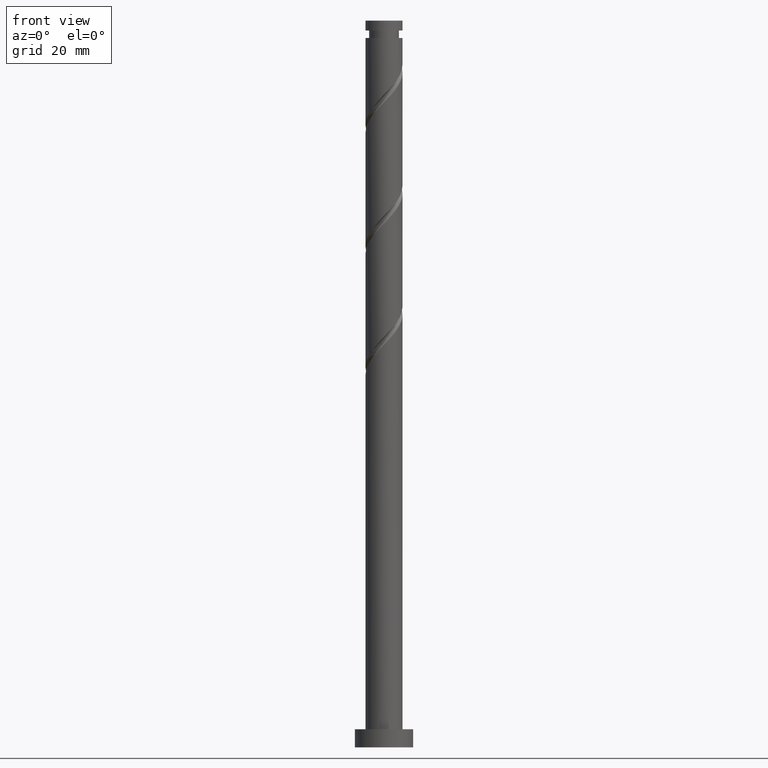
[diagram: clean part render]
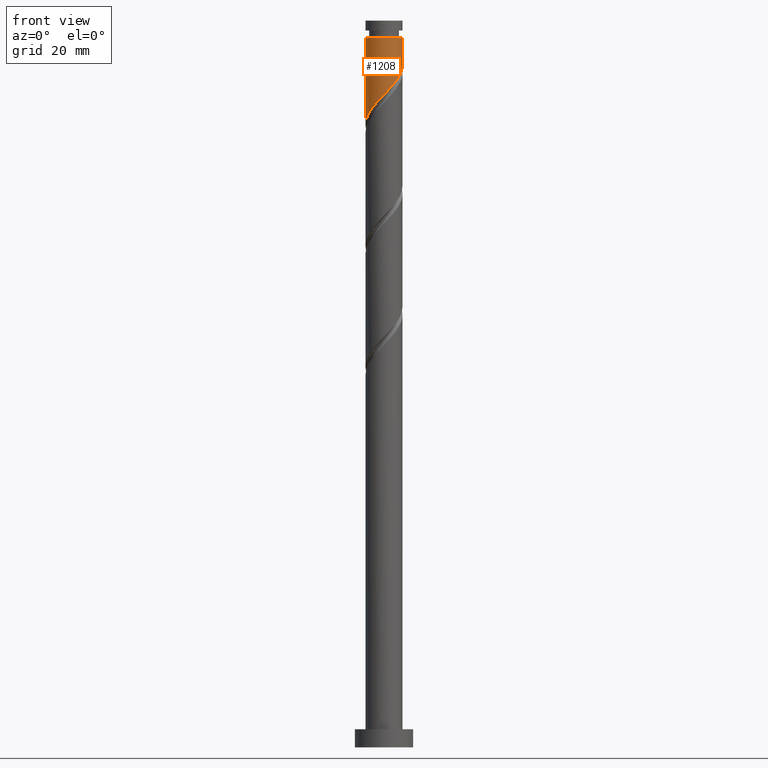
[diagram: same view with one face highlighted and labeled with its STEP entity id]
A machine part, front view. The second image highlights one B-rep face of the part: STEP entity #1208.
In plain terms, the highlighted cylindrical surface (edge-blend (fillet) strip) has radius 5.1 mm, axis along (-0, -0, -1).
Its self-contained STEP definition (entity closure, byte-faithful):
#22 = CARTESIAN_POINT ( 'NONE',  ( 4.864387567213564800, -1.672886368790561518, 186.1923034357766369 ) ) ;
#26 = VERTEX_POINT ( 'NONE', #105 ) ;
#54 = CARTESIAN_POINT ( 'NONE',  ( -3.880955876624109901, -3.376240022664852347, 175.0811923246654942 ) ) ;
#86 = CARTESIAN_POINT ( 'NONE',  ( -5.099999999999999645, 0.000000000000000000, 200.0000000000000000 ) ) ;
#105 = CARTESIAN_POINT ( 'NONE',  ( -5.099999999999988098, 0.000000000000000000, 195.2200812135544368 ) ) ;
#126 = DIRECTION ( 'NONE',  ( -0.000000000000000000, -0.000000000000000000, -1.000000000000000000 ) ) ;
#133 = DIRECTION ( 'NONE',  ( -0.000000000000000000, -0.000000000000000000, -1.000000000000000000 ) ) ;
#143 = EDGE_CURVE ( 'NONE', #640, #26, #605, .T. ) ;
#193 = CARTESIAN_POINT ( 'NONE',  ( 0.3132718438412520068, -5.090369412120920423, 179.9423034357766653 ) ) ;
#247 = DIRECTION ( 'NONE',  ( -1.000000000000000000, 0.000000000000000000, 0.000000000000000000 ) ) ;
#299 = CARTESIAN_POINT ( 'NONE',  ( 4.997999999999998444, -1.014887185848754259, 186.8867478802211224 ) ) ;
#312 = VERTEX_POINT ( 'NONE', #840 ) ;
#313 = CARTESIAN_POINT ( 'NONE',  ( -0.3568880029069506632, -5.131612432786431199, 179.2478589913321230 ) ) ;
#332 = CARTESIAN_POINT ( 'NONE',  ( 1.620081915079678803, -4.835838561039001782, 181.3311923246655795 ) ) ;
#416 = DIRECTION ( 'NONE',  ( -1.000000000000000000, 0.000000000000000000, 0.000000000000000000 ) ) ;
#424 = EDGE_LOOP ( 'NONE', ( #830, #788, #444, #861 ) ) ;
#444 = ORIENTED_EDGE ( 'NONE', *, *, #657, .T. ) ;
#445 = CARTESIAN_POINT ( 'NONE',  ( -2.874880293216528493, -4.265662727715638702, 176.4700812135544368 ) ) ;
#456 = CARTESIAN_POINT ( 'NONE',  ( -4.835838561039000005, -1.620081915079678803, 172.9978589913322367 ) ) ;
#457 = LINE ( 'NONE', #86, #1470 ) ;
#515 = VECTOR ( 'NONE', #126, 1000.000000000000000 ) ;
#543 = CARTESIAN_POINT ( 'NONE',  ( 0.000000000000000000, 0.000000000000000000, 195.2200812135544368 ) ) ;
#565 = CARTESIAN_POINT ( 'NONE',  ( 4.565025147464601751, -2.273883331003546004, 185.4978589913322082 ) ) ;
#605 = CIRCLE ( 'NONE', #1649, 5.099999999999988098 ) ;
#615 = DIRECTION ( 'NONE',  ( -0.000000000000000000, -0.000000000000000000, -1.000000000000000000 ) ) ;
#640 = VERTEX_POINT ( 'NONE', #1292 ) ;
#644 = LINE ( 'NONE', #1289, #515 ) ;
#657 = EDGE_CURVE ( 'NONE', #26, #781, #457, .T. ) ;
#700 = CARTESIAN_POINT ( 'NONE',  ( 5.099999999999996092, -0.5125692857822160553, 187.4168881662418755 ) ) ;
#719 = CARTESIAN_POINT ( 'NONE',  ( -4.251753303623349467, -2.816486081117378415, 174.3867478802211224 ) ) ;
#737 = CARTESIAN_POINT ( 'NONE',  ( -5.049126391455411422, -0.9834316905894557870, 172.3034145468877796 ) ) ;
#781 = VERTEX_POINT ( 'NONE', #1027 ) ;
#788 = ORIENTED_EDGE ( 'NONE', *, *, #143, .T. ) ;
#830 = ORIENTED_EDGE ( 'NONE', *, *, #1351, .F. ) ;
#840 = CARTESIAN_POINT ( 'NONE',  ( 5.099999999999998757, 1.749592779903561744E-15, 187.9503145354311187 ) ) ;
#842 = CARTESIAN_POINT ( 'NONE',  ( -3.377918084920320752, -3.820951375190245081, 175.7756367691100081 ) ) ;
#851 = CARTESIAN_POINT ( 'NONE',  ( -1.672886368790559519, -4.864387567213565688, 177.8589701024433509 ) ) ;
#861 = ORIENTED_EDGE ( 'NONE', *, *, #1039, .F. ) ;
#862 = CARTESIAN_POINT ( 'NONE',  ( -1.014887185848754036, -4.997999999999998444, 178.5534145468878080 ) ) ;
#997 = CARTESIAN_POINT ( 'NONE',  ( -5.090369412120920423, -0.3132718438412534501, 171.6089701024433509 ) ) ;
#1004 = CARTESIAN_POINT ( 'NONE',  ( -5.099999999999998757, -3.005710673167657517E-15, 171.2836478687644899 ) ) ;
#1027 = CARTESIAN_POINT ( 'NONE',  ( -5.099999999999998757, -3.005710673167657517E-15, 171.2836478687644899 ) ) ;
#1039 = EDGE_CURVE ( 'NONE', #312, #781, #1219, .T. ) ;
#1086 = CARTESIAN_POINT ( 'NONE',  ( 4.265662727715638702, -2.874880293216529381, 184.8034145468877512 ) ) ;
#1098 = CARTESIAN_POINT ( 'NONE',  ( 3.820951375190245081, -3.377918084920320752, 184.1089701024434078 ) ) ;
#1108 = CARTESIAN_POINT ( 'NONE',  ( -4.622550730622588588, -2.256732139569901818, 173.6923034357766085 ) ) ;
#1208 = ADVANCED_FACE ( 'NONE', ( #1298 ), #1735, .T. ) ;
#1219 =( BOUNDED_CURVE ( )  B_SPLINE_CURVE ( 2, ( #1228, #700, #299, #22, #565, #1086, #1098, #1237, #1390, #1283, #332, #1272, #193, #313, #862, #851, #1406, #445, #842, #54, #719, #1108, #456, #737, #997, #1257, #1004 ),
 .UNSPECIFIED., .F., .T. ) 
 B_SPLINE_CURVE_WITH_KNOTS ( ( 3, 2, 2, 2, 2, 2, 2, 2, 2, 2, 2, 2, 2, 3 ),
 ( 0.3045317669814465167, 0.3125000000000000000, 0.3229166666666666852, 0.3333333333333333148, 0.3437500000000000000, 0.3541666666666666852, 0.3645833333333333148, 0.3750000000000000000, 0.3854166666666666852, 0.3958333333333333148, 0.4062500000000000000, 0.4166666666666666852, 0.4270833333333333148, 0.4295317669814464057 ),
 .UNSPECIFIED. ) 
 CURVE ( )  GEOMETRIC_REPRESENTATION_ITEM ( )  RATIONAL_B_SPLINE_CURVE ( ( 0.9062941362546380608, 0.9031415850403428092, 0.9090909090909178314, 0.9013135103398364212, 0.9090909090909178314, 0.9013135103398364212, 0.9090909090909178314, 0.9013135103398364212, 0.9090909090909178314, 0.9013135103398364212, 0.9090909090909178314, 0.9013135103398364212, 0.9090909090909178314, 0.9013135103398364212, 0.9090909090909178314, 0.9013135103398364212, 0.9090909090909178314, 0.9013135103398364212, 0.9090909090909178314, 0.9013135103398364212, 0.9090909090909178314, 0.9013135103398364212, 0.9090909090909178314, 0.9013135103398364212, 0.9090909090909178314, 0.9072628343904116655, 0.9062941362546383939 ) ) 
 REPRESENTATION_ITEM ( '' )  );
#1228 = CARTESIAN_POINT ( 'NONE',  ( 5.099999999999998757, 1.749592779903561744E-15, 187.9503145354311187 ) ) ;
#1237 = CARTESIAN_POINT ( 'NONE',  ( 3.376240022664851903, -3.880955876624109901, 183.4145256579988086 ) ) ;
#1257 = CARTESIAN_POINT ( 'NONE',  ( -5.099999999999999645, -0.1567839534541243252, 171.4468115567926532 ) ) ;
#1272 = CARTESIAN_POINT ( 'NONE',  ( 0.9834316905894542327, -5.049126391455411422, 180.6367478802210087 ) ) ;
#1283 = CARTESIAN_POINT ( 'NONE',  ( 2.256732139569901818, -4.622550730622588588, 182.0256367691099513 ) ) ;
#1289 = CARTESIAN_POINT ( 'NONE',  ( 5.099999999999999645, 6.245698675651500839E-16, 200.0000000000000000 ) ) ;
#1292 = CARTESIAN_POINT ( 'NONE',  ( 5.099999999999988098, 6.245698675651494922E-16, 195.2200812135544368 ) ) ;
#1298 = FACE_OUTER_BOUND ( 'NONE', #424, .T. ) ;
#1314 = DIRECTION ( 'NONE',  ( -0.000000000000000000, -0.000000000000000000, -1.000000000000000000 ) ) ;
#1351 = EDGE_CURVE ( 'NONE', #640, #312, #644, .T. ) ;
#1390 = CARTESIAN_POINT ( 'NONE',  ( 2.816486081117376195, -4.251753303623351243, 182.7200812135544368 ) ) ;
#1406 = CARTESIAN_POINT ( 'NONE',  ( -2.273883331003543784, -4.565025147464603528, 177.1645256579989223 ) ) ;
#1424 = CARTESIAN_POINT ( 'NONE',  ( 0.000000000000000000, 0.000000000000000000, 200.0000000000000000 ) ) ;
#1470 = VECTOR ( 'NONE', #615, 1000.000000000000000 ) ;
#1616 = AXIS2_PLACEMENT_3D ( 'NONE', #1424, #1314, #247 ) ;
#1649 = AXIS2_PLACEMENT_3D ( 'NONE', #543, #133, #416 ) ;
#1735 = CYLINDRICAL_SURFACE ( 'NONE', #1616, 5.099999999999999645 ) ;